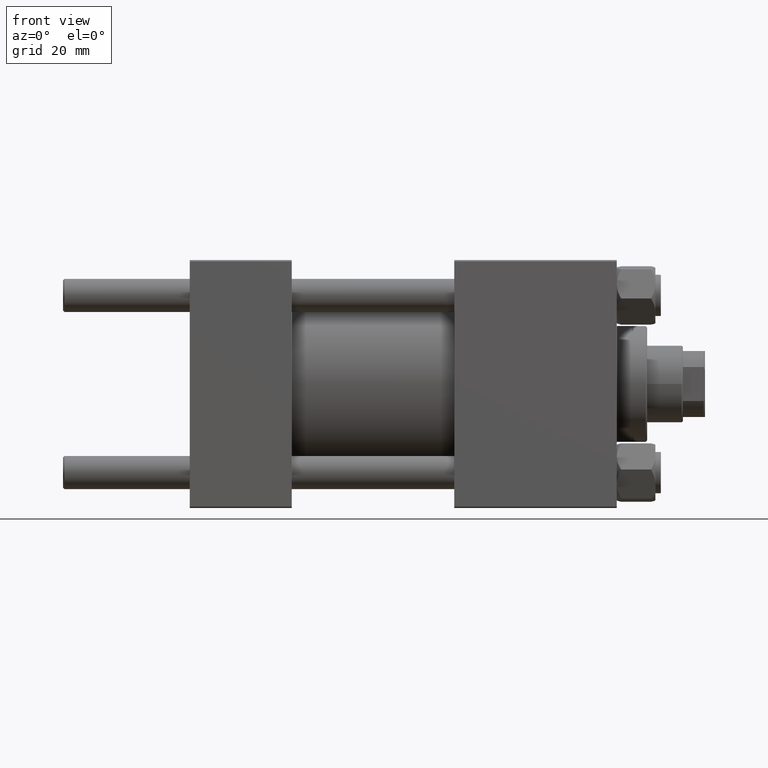
[diagram: clean part render]
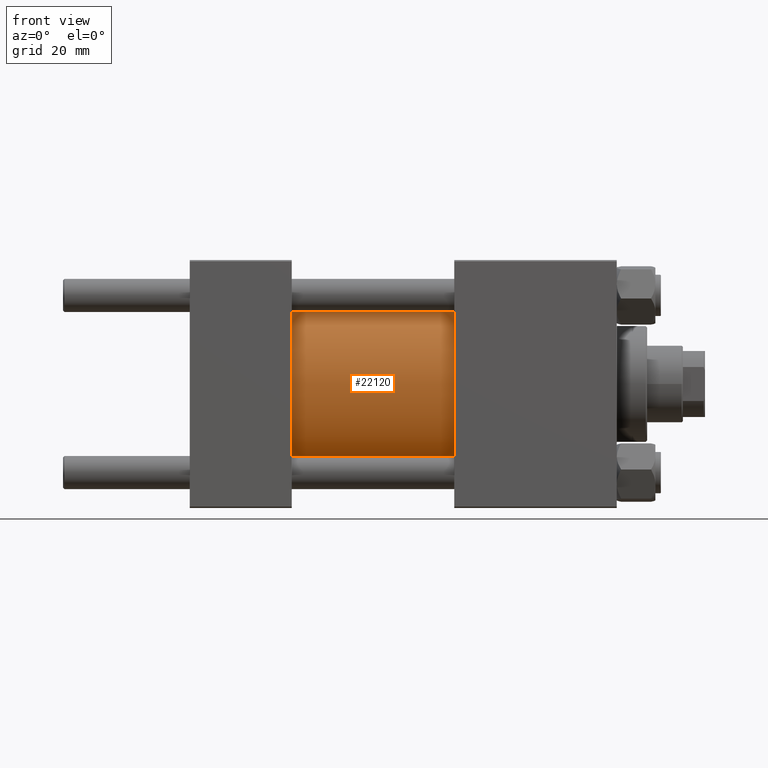
[diagram: same view with one face highlighted and labeled with its STEP entity id]
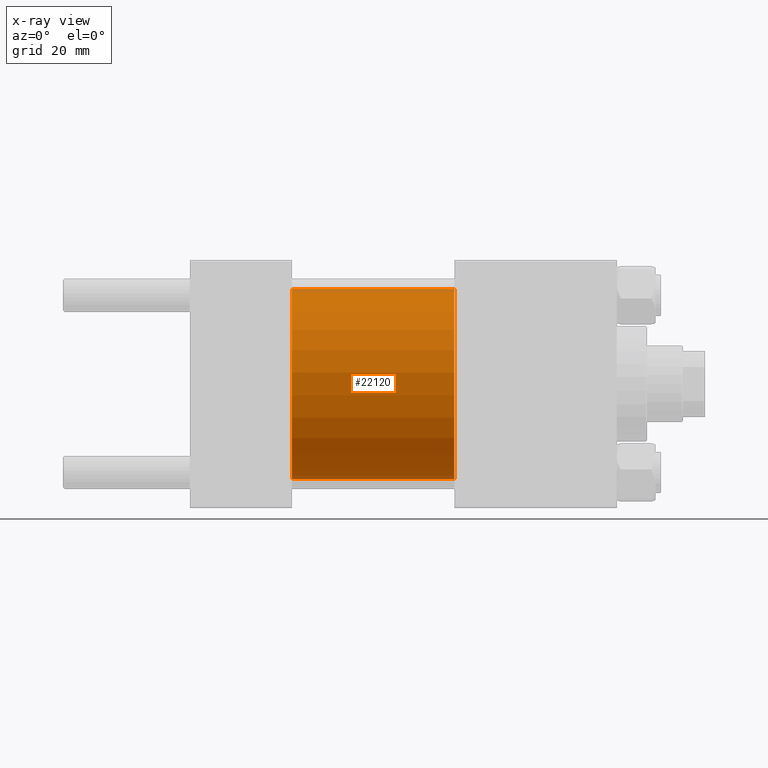
[diagram: x-ray of the same camera — body ghosted, the highlighted face saturated]
A machine part, front view. The second image highlights one B-rep face of the part: STEP entity #22120.
The next image is the same camera in x-ray: the body ghosted, the highlighted face saturated — about 4% of this face is hidden behind the body in this view.
In plain terms, the highlighted cylindrical surface (partial cylindrical patch) has radius 34.5 mm, axis along (-1, -0, -0).
Its self-contained STEP definition (entity closure, byte-faithful):
#1210 = ORIENTED_EDGE ( 'NONE', *, *, #7149, .T. ) ;
#1514 = EDGE_LOOP ( 'NONE', ( #6499, #36807, #43350, #1210 ) ) ;
#2211 = VECTOR ( 'NONE', #31096, 1000.000000000000000 ) ;
#3485 = CARTESIAN_POINT ( 'NONE',  ( 37.00000000000000000, 4.225031457058367344E-15, -34.49999999999999289 ) ) ;
#5032 = EDGE_CURVE ( 'NONE', #9889, #25065, #27847, .T. ) ;
#6499 = ORIENTED_EDGE ( 'NONE', *, *, #5032, .F. ) ;
#6928 = CARTESIAN_POINT ( 'NONE',  ( 96.00000000000000000, 4.225031457058367344E-15, -34.49999999999999289 ) ) ;
#7149 = EDGE_CURVE ( 'NONE', #10259, #25065, #11569, .T. ) ;
#9889 = VERTEX_POINT ( 'NONE', #6928 ) ;
#10259 = VERTEX_POINT ( 'NONE', #11804 ) ;
#11569 = CIRCLE ( 'NONE', #38213, 34.49999999999999289 ) ;
#11632 = LINE ( 'NONE', #46009, #2211 ) ;
#11804 = CARTESIAN_POINT ( 'NONE',  ( 37.00000000000000000, 0.000000000000000000, 34.49999999999999289 ) ) ;
#13679 = DIRECTION ( 'NONE',  ( 1.000000000000000000, -0.000000000000000000, 0.000000000000000000 ) ) ;
#14138 = CARTESIAN_POINT ( 'NONE',  ( 96.00000000000000000, 0.000000000000000000, 0.000000000000000000 ) ) ;
#14885 = FACE_OUTER_BOUND ( 'NONE', #1514, .T. ) ;
#16671 = CIRCLE ( 'NONE', #44905, 34.49999999999999289 ) ;
#18188 = CYLINDRICAL_SURFACE ( 'NONE', #22438, 34.49999999999999289 ) ;
#21548 = DIRECTION ( 'NONE',  ( 1.000000000000000000, 0.000000000000000000, 0.000000000000000000 ) ) ;
#21804 = CARTESIAN_POINT ( 'NONE',  ( 96.00000000000000000, 0.000000000000000000, 0.000000000000000000 ) ) ;
#22120 = ADVANCED_FACE ( 'NONE', ( #14885 ), #18188, .T. ) ;
#22438 = AXIS2_PLACEMENT_3D ( 'NONE', #14138, #30065, #38129 ) ;
#25065 = VERTEX_POINT ( 'NONE', #3485 ) ;
#27847 = LINE ( 'NONE', #47784, #38598 ) ;
#30065 = DIRECTION ( 'NONE',  ( -1.000000000000000000, -0.000000000000000000, -0.000000000000000000 ) ) ;
#31096 = DIRECTION ( 'NONE',  ( -1.000000000000000000, -0.000000000000000000, -0.000000000000000000 ) ) ;
#33200 = VERTEX_POINT ( 'NONE', #39885 ) ;
#36807 = ORIENTED_EDGE ( 'NONE', *, *, #42138, .F. ) ;
#38129 = DIRECTION ( 'NONE',  ( 0.000000000000000000, 0.000000000000000000, 1.000000000000000000 ) ) ;
#38213 = AXIS2_PLACEMENT_3D ( 'NONE', #48302, #13679, #47799 ) ;
#38598 = VECTOR ( 'NONE', #39693, 1000.000000000000000 ) ;
#39693 = DIRECTION ( 'NONE',  ( -1.000000000000000000, -0.000000000000000000, -0.000000000000000000 ) ) ;
#39885 = CARTESIAN_POINT ( 'NONE',  ( 96.00000000000000000, 0.000000000000000000, 34.49999999999999289 ) ) ;
#41719 = DIRECTION ( 'NONE',  ( 0.000000000000000000, 0.000000000000000000, -1.000000000000000000 ) ) ;
#42138 = EDGE_CURVE ( 'NONE', #33200, #9889, #16671, .T. ) ;
#43350 = ORIENTED_EDGE ( 'NONE', *, *, #43891, .T. ) ;
#43891 = EDGE_CURVE ( 'NONE', #33200, #10259, #11632, .T. ) ;
#44905 = AXIS2_PLACEMENT_3D ( 'NONE', #21804, #21548, #41719 ) ;
#46009 = CARTESIAN_POINT ( 'NONE',  ( 96.00000000000000000, 0.000000000000000000, 34.49999999999999289 ) ) ;
#47784 = CARTESIAN_POINT ( 'NONE',  ( 96.00000000000000000, 4.225031457058367344E-15, -34.49999999999999289 ) ) ;
#47799 = DIRECTION ( 'NONE',  ( 0.000000000000000000, 0.000000000000000000, 1.000000000000000000 ) ) ;
#48302 = CARTESIAN_POINT ( 'NONE',  ( 37.00000000000000000, 0.000000000000000000, 0.000000000000000000 ) ) ;